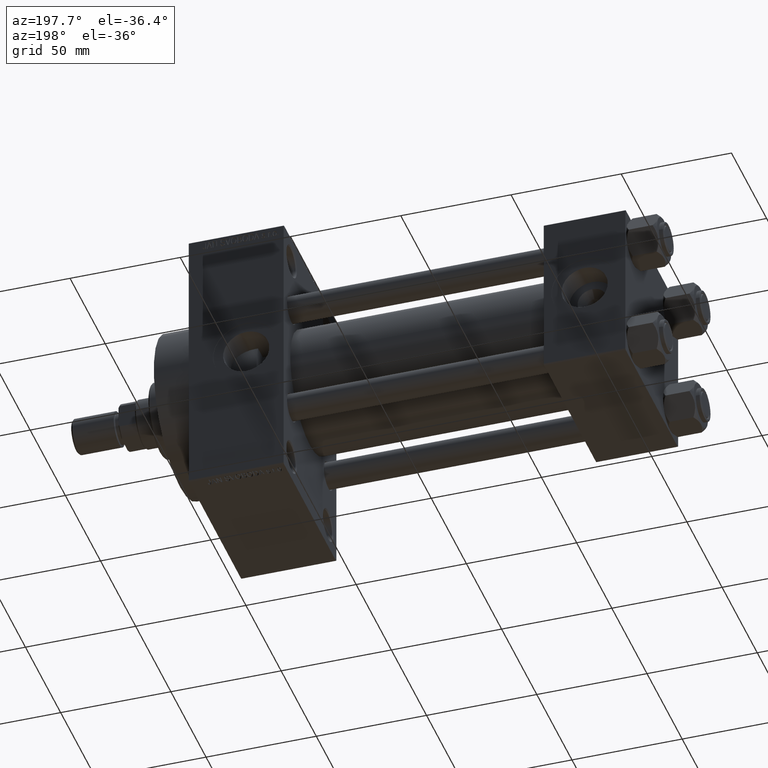
[diagram: clean part render]
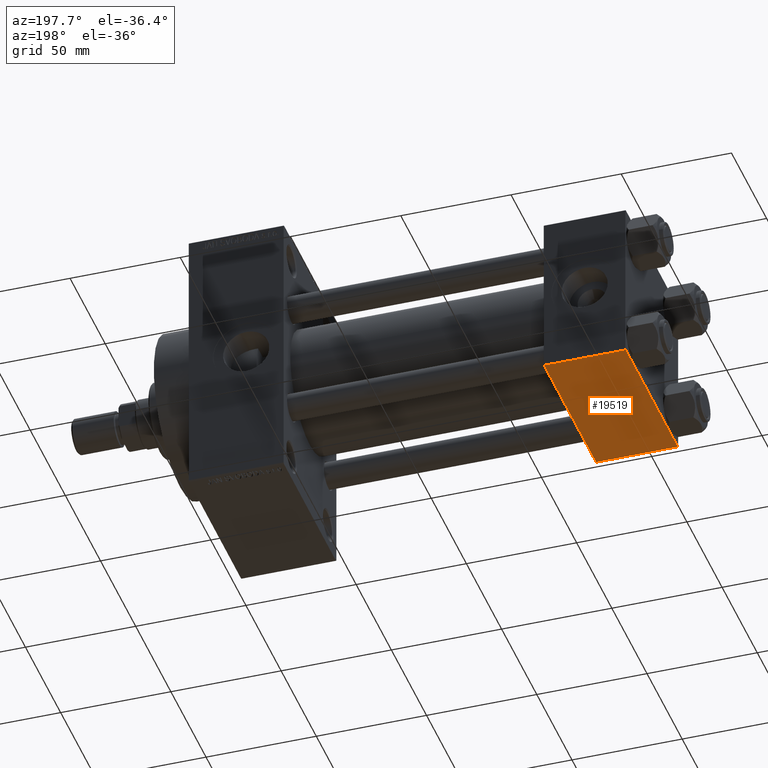
[diagram: same view with one face highlighted and labeled with its STEP entity id]
A machine part, auxiliary view. The second image highlights one B-rep face of the part: STEP entity #19519.
In plain terms, the highlighted planar face has unit normal (0, 0, -1).
Its self-contained STEP definition (entity closure, byte-faithful):
#966 = VECTOR ( 'NONE', #6792, 1000.000000000000000 ) ;
#1979 = DIRECTION ( 'NONE',  ( -1.000000000000000000, 0.000000000000000000, 0.000000000000000000 ) ) ;
#2020 = AXIS2_PLACEMENT_3D ( 'NONE', #44739, #18685, #37632 ) ;
#2209 = CARTESIAN_POINT ( 'NONE',  ( 37.00000000000000000, -37.00000000000002132, -37.50000000000000711 ) ) ;
#2264 = VECTOR ( 'NONE', #5135, 1000.000000000000000 ) ;
#3242 = CARTESIAN_POINT ( 'NONE',  ( 37.00000000000000000, 36.99999999999997868, -37.50000000000000000 ) ) ;
#3305 = EDGE_CURVE ( 'NONE', #18252, #31650, #5248, .T. ) ;
#5135 = DIRECTION ( 'NONE',  ( 0.000000000000000000, -1.000000000000000000, -9.251858538542972814E-17 ) ) ;
#5248 = LINE ( 'NONE', #20676, #15380 ) ;
#6792 = DIRECTION ( 'NONE',  ( 1.000000000000000000, 0.000000000000000000, 0.000000000000000000 ) ) ;
#8258 = DIRECTION ( 'NONE',  ( 0.000000000000000000, -1.000000000000000000, -9.251858538542972814E-17 ) ) ;
#12753 = ORIENTED_EDGE ( 'NONE', *, *, #33203, .F. ) ;
#13455 = EDGE_CURVE ( 'NONE', #43005, #14091, #29778, .T. ) ;
#14091 = VERTEX_POINT ( 'NONE', #29667 ) ;
#15380 = VECTOR ( 'NONE', #1979, 1000.000000000000000 ) ;
#15693 = CARTESIAN_POINT ( 'NONE',  ( 0.000000000000000000, -37.00000000000002132, -37.50000000000000711 ) ) ;
#17705 = FACE_OUTER_BOUND ( 'NONE', #29547, .T. ) ;
#18252 = VERTEX_POINT ( 'NONE', #2209 ) ;
#18685 = DIRECTION ( 'NONE',  ( 0.000000000000000000, 9.251858538542972814E-17, -1.000000000000000000 ) ) ;
#19519 = ADVANCED_FACE ( 'NONE', ( #17705 ), #48538, .T. ) ;
#19909 = ORIENTED_EDGE ( 'NONE', *, *, #34701, .T. ) ;
#20676 = CARTESIAN_POINT ( 'NONE',  ( 0.000000000000000000, -37.00000000000002132, -37.50000000000000711 ) ) ;
#23936 = ORIENTED_EDGE ( 'NONE', *, *, #13455, .T. ) ;
#24334 = CARTESIAN_POINT ( 'NONE',  ( 0.000000000000000000, 37.49999999999999289, -37.50000000000000000 ) ) ;
#27209 = CARTESIAN_POINT ( 'NONE',  ( 37.00000000000000000, 37.49999999999999289, -37.50000000000000000 ) ) ;
#27458 = LINE ( 'NONE', #27209, #36170 ) ;
#29547 = EDGE_LOOP ( 'NONE', ( #12753, #23936, #19909, #31349 ) ) ;
#29667 = CARTESIAN_POINT ( 'NONE',  ( 37.00000000000000000, 36.99999999999997868, -37.50000000000000000 ) ) ;
#29778 = LINE ( 'NONE', #3242, #966 ) ;
#31349 = ORIENTED_EDGE ( 'NONE', *, *, #3305, .T. ) ;
#31650 = VERTEX_POINT ( 'NONE', #15693 ) ;
#33203 = EDGE_CURVE ( 'NONE', #43005, #31650, #43535, .T. ) ;
#34701 = EDGE_CURVE ( 'NONE', #14091, #18252, #27458, .T. ) ;
#36170 = VECTOR ( 'NONE', #8258, 1000.000000000000000 ) ;
#37632 = DIRECTION ( 'NONE',  ( 0.000000000000000000, 1.000000000000000000, 9.251858538542972814E-17 ) ) ;
#40082 = CARTESIAN_POINT ( 'NONE',  ( 0.000000000000000000, 36.99999999999997868, -37.50000000000000000 ) ) ;
#43005 = VERTEX_POINT ( 'NONE', #40082 ) ;
#43535 = LINE ( 'NONE', #24334, #2264 ) ;
#44739 = CARTESIAN_POINT ( 'NONE',  ( 37.00000000000000000, 37.49999999999999289, -37.50000000000000000 ) ) ;
#48538 = PLANE ( 'NONE',  #2020 ) ;